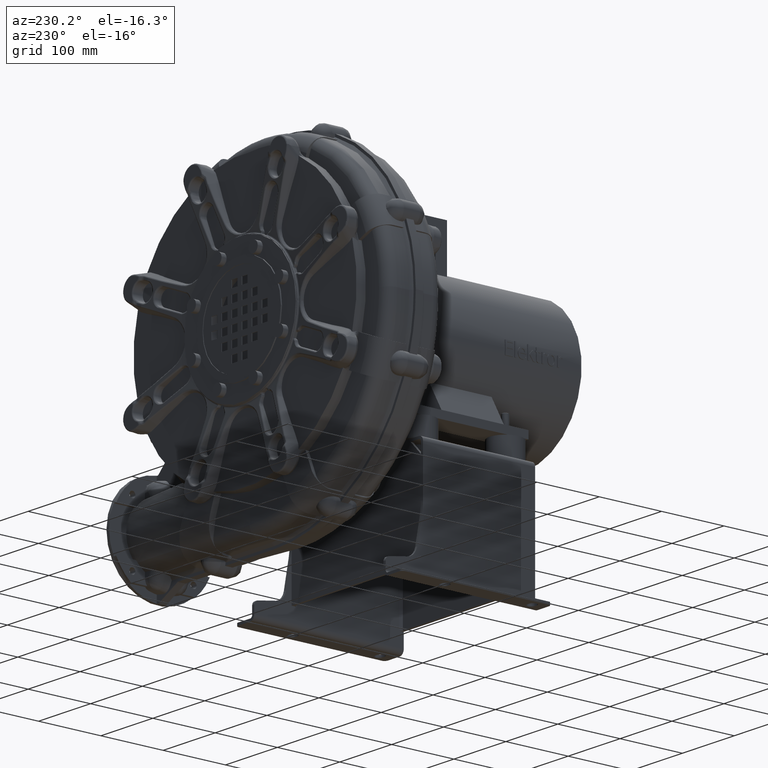
[diagram: clean part render]
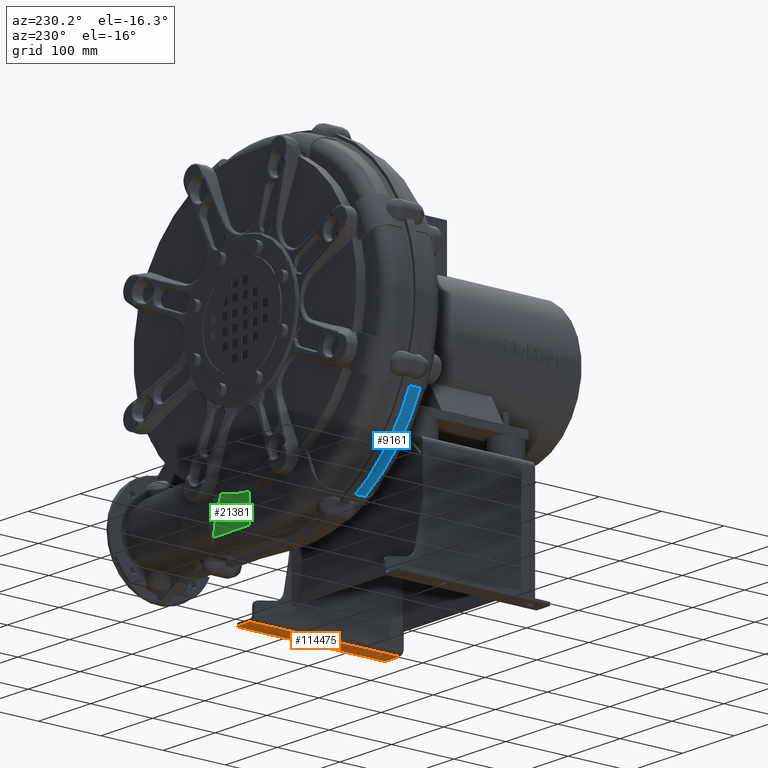
[diagram: same view with three faces highlighted in distinct colors, each labeled with its STEP entity id]
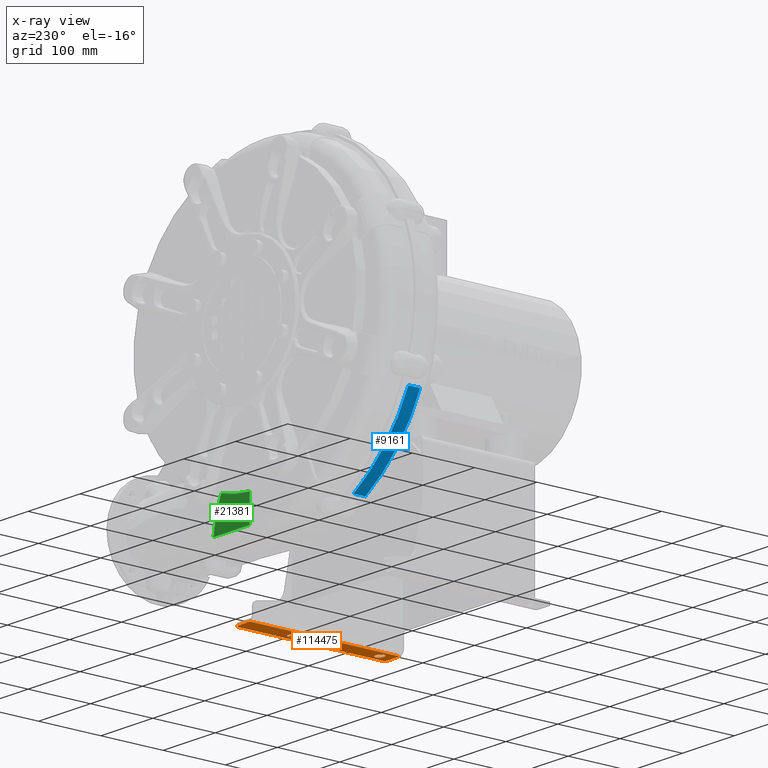
[diagram: x-ray of the same camera — body ghosted, the three highlighted faces saturated]
A machine part, auxiliary view with three faces highlighted in distinct colors.
The next image is the same camera in x-ray (body ghosted, the three faces saturated) — at least one of them is partly hidden behind the body in this view.
Their STEP definitions:

[orange] entity #114475 — the highlighted planar face has unit normal (0, 0, 1).
#114121=CARTESIAN_POINT('',(132.50000000000068,150.00000000000006,-188.99999999999991));
#114122=VERTEX_POINT('',#114121);
#114123=CARTESIAN_POINT('',(132.50000000000003,-90.000000000000014,-188.99999999999991));
#114124=VERTEX_POINT('',#114123);
#114125=CARTESIAN_POINT('',(132.50000000000071,150.00000000000003,-189.00000000000063));
#114126=DIRECTION('',(0.0,-1.0,0.0));
#114127=VECTOR('',#114126,240.00000000000006);
#114128=LINE('',#114125,#114127);
#114129=EDGE_CURVE('',#114122,#114124,#114128,.T.);
#114317=CARTESIAN_POINT('',(155.49999999999997,150.00000000000006,-189.00000000000003));
#114318=VERTEX_POINT('',#114317);
#114325=CARTESIAN_POINT('',(155.49999999999997,150.00000000000006,-189.00000000000003));
#114326=DIRECTION('',(-1.0,0.0,0.0));
#114327=VECTOR('',#114326,22.999999999999289);
#114328=LINE('',#114325,#114327);
#114329=EDGE_CURVE('',#114318,#114122,#114328,.T.);
#114351=CARTESIAN_POINT('',(160.49999999999997,145.00000000000006,-189.00000000000003));
#114352=VERTEX_POINT('',#114351);
#114359=CARTESIAN_POINT('',(155.49999999999997,145.00000000000006,-189.0));
#114360=DIRECTION('',(0.0,0.0,1.0));
#114361=DIRECTION('',(0.707106781186547,0.707106781186547,0.0));
#114362=AXIS2_PLACEMENT_3D('',#114359,#114360,#114361);
#114363=CIRCLE('',#114362,4.999999999999999);
#114364=EDGE_CURVE('',#114352,#114318,#114363,.T.);
#114370=CARTESIAN_POINT('',(144.49999999999997,30.000000000000018,-189.0));
#114371=DIRECTION('',(0.0,0.0,1.0));
#114372=DIRECTION('',(1.0,0.0,0.0));
#114373=AXIS2_PLACEMENT_3D('',#114370,#114371,#114372);
#114374=PLANE('',#114373);
#114375=CARTESIAN_POINT('',(155.5,-90.000000000000014,-189.00000000000003));
#114376=VERTEX_POINT('',#114375);
#114377=CARTESIAN_POINT('',(160.5,-85.000000000000014,-189.00000000000003));
#114378=VERTEX_POINT('',#114377);
#114379=CARTESIAN_POINT('',(155.5,-85.000000000000014,-189.0));
#114380=DIRECTION('',(0.0,0.0,1.0));
#114381=DIRECTION('',(0.707106781186547,-0.707106781186547,0.0));
#114382=AXIS2_PLACEMENT_3D('',#114379,#114380,#114381);
#114383=CIRCLE('',#114382,4.999999999999999);
#114384=EDGE_CURVE('',#114376,#114378,#114383,.T.);
#114385=ORIENTED_EDGE('',*,*,#114384,.F.);
#114386=CARTESIAN_POINT('',(132.5,-90.000000000000014,-189.00000000000003));
#114387=DIRECTION('',(1.0,0.0,0.0));
#114388=VECTOR('',#114387,23.0);
#114389=LINE('',#114386,#114388);
#114390=EDGE_CURVE('',#114124,#114376,#114389,.T.);
#114391=ORIENTED_EDGE('',*,*,#114390,.F.);
#114392=ORIENTED_EDGE('',*,*,#114129,.F.);
#114393=ORIENTED_EDGE('',*,*,#114329,.F.);
#114394=ORIENTED_EDGE('',*,*,#114364,.F.);
#114395=CARTESIAN_POINT('',(160.5,-85.000000000000014,-189.00000000000003));
#114396=DIRECTION('',(0.0,1.0,0.0));
#114397=VECTOR('',#114396,230.00000000000006);
#114398=LINE('',#114395,#114397);
#114399=EDGE_CURVE('',#114378,#114352,#114398,.T.);
#114400=ORIENTED_EDGE('',*,*,#114399,.F.);
#114401=EDGE_LOOP('',(#114385,#114391,#114392,#114393,#114394,#114400));
#114402=FACE_OUTER_BOUND('',#114401,.T.);
#114403=CARTESIAN_POINT('',(148.25000000000051,-75.999999999999162,-189.0));
#114404=VERTEX_POINT('',#114403);
#114405=CARTESIAN_POINT('',(148.25000000000048,-63.999999999999204,-189.0));
#114406=VERTEX_POINT('',#114405);
#114407=CARTESIAN_POINT('',(148.25000000000051,-69.999999999999218,-189.0));
#114408=DIRECTION('',(0.0,0.0,1.0));
#114409=DIRECTION('',(0.0,-1.0,0.0));
#114410=AXIS2_PLACEMENT_3D('',#114407,#114408,#114409);
#114411=CIRCLE('',#114410,6.000000000000014);
#114412=EDGE_CURVE('',#114404,#114406,#114411,.T.);
#114413=ORIENTED_EDGE('',*,*,#114412,.T.);
#114414=CARTESIAN_POINT('',(144.75000000000048,-63.99999999999924,-189.0));
#114415=VERTEX_POINT('',#114414);
#114416=CARTESIAN_POINT('',(148.25000000000051,-63.999999999999233,-189.0));
#114417=DIRECTION('',(-1.0,0.0,0.0));
#114418=VECTOR('',#114417,3.500000000000028);
#114419=LINE('',#114416,#114418);
#114420=EDGE_CURVE('',#114406,#114415,#114419,.T.);
#114421=ORIENTED_EDGE('',*,*,#114420,.T.);
#114422=CARTESIAN_POINT('',(144.75000000000051,-75.999999999999204,-189.0));
#114423=VERTEX_POINT('',#114422);
#114424=CARTESIAN_POINT('',(144.75000000000048,-69.999999999999218,-189.0));
#114425=DIRECTION('',(0.0,0.0,1.0));
#114426=DIRECTION('',(0.0,1.0,0.0));
#114427=AXIS2_PLACEMENT_3D('',#114424,#114425,#114426);
#114428=CIRCLE('',#114427,5.999999999999996);
#114429=EDGE_CURVE('',#114415,#114423,#114428,.T.);
#114430=ORIENTED_EDGE('',*,*,#114429,.T.);
#114431=CARTESIAN_POINT('',(144.75000000000051,-75.999999999999204,-189.0));
#114432=DIRECTION('',(1.0,0.0,0.0));
#114433=VECTOR('',#114432,3.5);
#114434=LINE('',#114431,#114433);
#114435=EDGE_CURVE('',#114423,#114404,#114434,.T.);
#114436=ORIENTED_EDGE('',*,*,#114435,.T.);
#114437=EDGE_LOOP('',(#114413,#114421,#114430,#114436));
#114438=FACE_BOUND('',#114437,.T.);
#114439=CARTESIAN_POINT('',(148.25000000000017,64.000000000000796,-189.0));
#114440=VERTEX_POINT('',#114439);
#114441=CARTESIAN_POINT('',(148.25000000000014,76.000000000000767,-189.0));
#114442=VERTEX_POINT('',#114441);
#114443=CARTESIAN_POINT('',(148.25000000000014,70.000000000000739,-189.0));
#114444=DIRECTION('',(0.0,0.0,1.0));
#114445=DIRECTION('',(0.0,-1.0,0.0));
#114446=AXIS2_PLACEMENT_3D('',#114443,#114444,#114445);
#114447=CIRCLE('',#114446,6.000000000000014);
#114448=EDGE_CURVE('',#114440,#114442,#114447,.T.);
#114449=ORIENTED_EDGE('',*,*,#114448,.T.);
#114450=CARTESIAN_POINT('',(144.75000000000011,76.000000000000725,-189.0));
#114451=VERTEX_POINT('',#114450);
#114452=CARTESIAN_POINT('',(148.25000000000014,76.000000000000739,-189.0));
#114453=DIRECTION('',(-1.0,0.0,0.0));
#114454=VECTOR('',#114453,3.5);
#114455=LINE('',#114452,#114454);
#114456=EDGE_CURVE('',#114442,#114451,#114455,.T.);
#114457=ORIENTED_EDGE('',*,*,#114456,.T.);
#114458=CARTESIAN_POINT('',(144.75000000000017,64.000000000000767,-189.0));
#114459=VERTEX_POINT('',#114458);
#114460=CARTESIAN_POINT('',(144.75000000000014,70.000000000000739,-189.0));
#114461=DIRECTION('',(0.0,0.0,1.0));
#114462=DIRECTION('',(0.0,1.0,0.0));
#114463=AXIS2_PLACEMENT_3D('',#114460,#114461,#114462);
#114464=CIRCLE('',#114463,5.999999999999996);
#114465=EDGE_CURVE('',#114451,#114459,#114464,.T.);
#114466=ORIENTED_EDGE('',*,*,#114465,.T.);
#114467=CARTESIAN_POINT('',(144.75000000000017,64.000000000000767,-189.0));
#114468=DIRECTION('',(1.0,0.0,0.0));
#114469=VECTOR('',#114468,3.5);
#114470=LINE('',#114467,#114469);
#114471=EDGE_CURVE('',#114459,#114440,#114470,.T.);
#114472=ORIENTED_EDGE('',*,*,#114471,.T.);
#114473=EDGE_LOOP('',(#114449,#114457,#114466,#114472));
#114474=FACE_BOUND('',#114473,.T.);
#114475=ADVANCED_FACE('',(#114402,#114438,#114474),#114374,.F.);

[blue] entity #9161 — the highlighted cylindrical surface (partial cylindrical patch) has radius 265 mm, axis along (-0, 1, 0).
#9073=CARTESIAN_POINT('',(-124.95634814166533,179.4999999999996,-91.649725109279402));
#9074=VERTEX_POINT('',#9073);
#9097=CARTESIAN_POINT('',(-230.6691972841098,179.49999999999957,23.935081156043196));
#9098=VERTEX_POINT('',#9097);
#9120=CARTESIAN_POINT('',(8.999999999999933,179.49999999999963,136.99999999999986));
#9121=DIRECTION('',(1.173769E-016,-1.0,1.173769E-016));
#9122=DIRECTION('',(-0.707106781186548,-1.659960E-016,-0.707106781186547));
#9123=AXIS2_PLACEMENT_3D('',#9120,#9121,#9122);
#9124=CIRCLE('',#9123,265.0);
#9125=EDGE_CURVE('',#9098,#9074,#9124,.T.);
#9130=CARTESIAN_POINT('',(8.999999999999925,208.49999999999963,136.99999999999986));
#9131=DIRECTION('',(-2.400880E-016,1.0,5.334183E-018));
#9132=DIRECTION('',(0.0,0.0,-1.0));
#9133=AXIS2_PLACEMENT_3D('',#9130,#9131,#9132);
#9134=CYLINDRICAL_SURFACE('',#9133,265.0);
#9135=CARTESIAN_POINT('',(-124.95634814166533,198.4999999999996,-91.649725109279402));
#9136=VERTEX_POINT('',#9135);
#9137=CARTESIAN_POINT('',(-124.95634814166533,198.4999999999996,-91.649725109279402));
#9138=DIRECTION('',(0.0,-1.0,0.0));
#9139=VECTOR('',#9138,19.0);
#9140=LINE('',#9137,#9139);
#9141=EDGE_CURVE('',#9136,#9074,#9140,.T.);
#9142=ORIENTED_EDGE('',*,*,#9141,.T.);
#9143=ORIENTED_EDGE('',*,*,#9125,.F.);
#9144=CARTESIAN_POINT('',(-230.6691972841098,198.49999999999955,23.935081156043196));
#9145=VERTEX_POINT('',#9144);
#9146=CARTESIAN_POINT('',(-230.6691972841098,179.49999999999955,23.935081156043196));
#9147=DIRECTION('',(0.0,1.0,0.0));
#9148=VECTOR('',#9147,19.0);
#9149=LINE('',#9146,#9148);
#9150=EDGE_CURVE('',#9098,#9145,#9149,.T.);
#9151=ORIENTED_EDGE('',*,*,#9150,.T.);
#9152=CARTESIAN_POINT('',(8.999999999999929,198.49999999999963,136.99999999999986));
#9153=DIRECTION('',(0.0,1.0,0.0));
#9154=DIRECTION('',(0.0,0.0,-1.0));
#9155=AXIS2_PLACEMENT_3D('',#9152,#9153,#9154);
#9156=CIRCLE('',#9155,265.0);
#9157=EDGE_CURVE('',#9136,#9145,#9156,.T.);
#9158=ORIENTED_EDGE('',*,*,#9157,.F.);
#9159=EDGE_LOOP('',(#9142,#9143,#9151,#9158));
#9160=FACE_OUTER_BOUND('',#9159,.T.);
#9161=ADVANCED_FACE('',(#9160),#9134,.T.);

[green] entity #21381 — the highlighted face is a freeform B-spline surface patch.
#15520=CARTESIAN_POINT('',(8.999999999999869,253.49999999999963,-68.81154531356097));
#15521=VERTEX_POINT('',#15520);
#15529=CARTESIAN_POINT('',(8.99999999999986,253.49999999999963,-72.259020432146301));
#15530=VERTEX_POINT('',#15529);
#15531=CARTESIAN_POINT('',(8.999999999999869,253.49999999999963,-68.81154531356097));
#15532=DIRECTION('',(0.0,0.0,-1.0));
#15533=VECTOR('',#15532,3.447475118585331);
#15534=LINE('',#15531,#15533);
#15535=EDGE_CURVE('',#15521,#15530,#15534,.T.);
#15537=CARTESIAN_POINT('',(8.999999999999863,253.49999999999963,-104.56852825738684));
#15538=VERTEX_POINT('',#15537);
#15539=CARTESIAN_POINT('',(8.999999999999867,253.49999999999963,-104.56852825738684));
#15540=DIRECTION('',(0.0,0.0,1.0));
#15541=VECTOR('',#15540,32.309507825240559);
#15542=LINE('',#15539,#15541);
#15543=EDGE_CURVE('',#15538,#15530,#15542,.T.);
#15545=CARTESIAN_POINT('',(8.999999999999861,253.49999999999963,-112.00000000000011));
#15546=VERTEX_POINT('',#15545);
#15547=CARTESIAN_POINT('',(8.999999999999865,253.49999999999963,-112.00000000000011));
#15548=DIRECTION('',(0.0,0.0,1.0));
#15549=VECTOR('',#15548,7.431471742613269);
#15550=LINE('',#15547,#15549);
#15551=EDGE_CURVE('',#15546,#15538,#15550,.T.);
#21254=CARTESIAN_POINT('',(80.685079240098617,252.08366663374548,-111.37279114302794));
#21255=VERTEX_POINT('',#21254);
#21271=CARTESIAN_POINT('',(8.999999999999861,253.49999999999963,-112.00000000000011));
#21272=CARTESIAN_POINT('',(32.895026413366104,253.0278888779149,-111.79093038100939));
#21273=CARTESIAN_POINT('',(56.790052826732364,252.55577775583032,-111.58186076201871));
#21274=CARTESIAN_POINT('',(80.685079240098645,252.08366663374562,-111.372791143028));
#21275=B_SPLINE_CURVE_WITH_KNOTS('',3,(#21271,#21272,#21273,#21274),.UNSPECIFIED.,.F.,.U.,(4,4),(0.0,0.324366874389587),.UNSPECIFIED.);
#21276=EDGE_CURVE('',#15546,#21255,#21275,.T.);
#21334=CARTESIAN_POINT('',(8.999999999999861,253.49999999999963,-112.00000000000011));
#21335=CARTESIAN_POINT('',(8.999999999999863,253.49999999999963,-104.40011429086633));
#21336=CARTESIAN_POINT('',(8.999999999999865,253.4999999999996,-86.667047636220815));
#21337=CARTESIAN_POINT('',(8.999999999999872,253.49999999999963,-68.933980981575345));
#21338=CARTESIAN_POINT('',(8.999999999999874,253.49999999999963,-58.800800036063627));
#21339=CARTESIAN_POINT('',(32.900670487047428,253.02777736391562,-111.79088099816654));
#21340=CARTESIAN_POINT('',(32.900670487047528,253.54830980011235,-104.44271598214789));
#21341=CARTESIAN_POINT('',(32.900670487047307,254.50043415400134,-87.056162606374471));
#21342=CARTESIAN_POINT('',(32.900670487047499,254.67227430521021,-69.386172174819919));
#21343=CARTESIAN_POINT('',(32.900670487047442,254.49635562599235,-59.333718465224237));
#21344=CARTESIAN_POINT('',(56.801340974095005,252.55555472783169,-111.58176199633301));
#21345=CARTESIAN_POINT('',(56.801340974094963,253.59650866627587,-104.48412863983103));
#21346=CARTESIAN_POINT('',(56.801340974095069,255.5028965575288,-87.44554540886476));
#21347=CARTESIAN_POINT('',(56.801340974094998,255.83756467166523,-69.83798726319624));
#21348=CARTESIAN_POINT('',(56.801340974095012,255.49271125198504,-59.866636894384854));
#21349=CARTESIAN_POINT('',(80.702011461142575,252.08333209174768,-111.37264299449944));
#21350=CARTESIAN_POINT('',(80.702011461142575,253.64481846638859,-104.52673033111259));
#21351=CARTESIAN_POINT('',(80.702011461142575,256.50333071153057,-87.834660379018402));
#21352=CARTESIAN_POINT('',(80.70201146114259,257.00983897687581,-70.290178456440827));
#21353=CARTESIAN_POINT('',(80.70201146114259,256.48906687797773,-60.399555323545464));
#21354=B_SPLINE_SURFACE_WITH_KNOTS('',3,3,((#21334,#21339,#21344,#21349),(#21335,#21340,#21345,#21350),(#21336,#21341,#21346,#21351),(#21337,#21342,#21347,#21352),(#21338,#21343,#21348,#21353)),.UNSPECIFIED.,.F.,.F.,.F.,(4,1,4),(4,4),(0.0,0.242549543908525,0.565948935786558),(0.0,0.324443490774401),.UNSPECIFIED.);
#21355=CARTESIAN_POINT('',(61.390037439142013,255.68705539655099,-60.049176904981621));
#21356=VERTEX_POINT('',#21355);
#21357=CARTESIAN_POINT('',(61.390037439153403,255.68705539655161,-60.049176904977308));
#21358=CARTESIAN_POINT('',(67.42620419005749,256.5425471067627,-76.105006013612496));
#21359=CARTESIAN_POINT('',(74.100042687995696,256.22104450643883,-93.857002411902357));
#21360=CARTESIAN_POINT('',(80.685079240098617,252.08366663374548,-111.37279114302792));
#21361=B_SPLINE_CURVE_WITH_KNOTS('',3,(#21357,#21358,#21359,#21360),.UNSPECIFIED.,.F.,.U.,(4,4),(-5.749392239486438,0.0),.UNSPECIFIED.);
#21362=EDGE_CURVE('',#21356,#21255,#21361,.T.);
#21363=ORIENTED_EDGE('',*,*,#21362,.T.);
#21364=ORIENTED_EDGE('',*,*,#21276,.F.);
#21365=ORIENTED_EDGE('',*,*,#15551,.T.);
#21366=ORIENTED_EDGE('',*,*,#15543,.T.);
#21367=ORIENTED_EDGE('',*,*,#15535,.F.);
#21368=CARTESIAN_POINT('',(8.999999999999865,253.49999999999963,-68.811545313560956));
#21369=CARTESIAN_POINT('',(15.58677358513004,253.79804182034266,-68.535578013108648));
#21370=CARTESIAN_POINT('',(22.157312417224382,254.0963323115038,-67.956801831557371));
#21371=CARTESIAN_POINT('',(35.771161175333233,254.70415975980058,-66.123702981210627));
#21372=CARTESIAN_POINT('',(42.799555022555026,255.01346844508919,-64.817948355634329));
#21373=CARTESIAN_POINT('',(53.727996625534473,255.43736695247082,-62.21873208120266));
#21374=CARTESIAN_POINT('',(57.609161982696236,255.57511132866185,-61.175646271714896));
#21375=CARTESIAN_POINT('',(61.390037439127966,255.68705539655093,-60.049176904986709));
#21376=B_SPLINE_CURVE_WITH_KNOTS('',3,(#21368,#21369,#21370,#21371,#21372,#21373,#21374,#21375),.UNSPECIFIED.,.F.,.U.,(4,2,2,4),(-10.276921700723969,-8.906258880398211,-7.42083952446878,-6.569943500122512),.UNSPECIFIED.);
#21377=EDGE_CURVE('',#15521,#21356,#21376,.T.);
#21378=ORIENTED_EDGE('',*,*,#21377,.T.);
#21379=EDGE_LOOP('',(#21363,#21364,#21365,#21366,#21367,#21378));
#21380=FACE_OUTER_BOUND('',#21379,.T.);
#21381=ADVANCED_FACE('',(#21380),#21354,.T.);